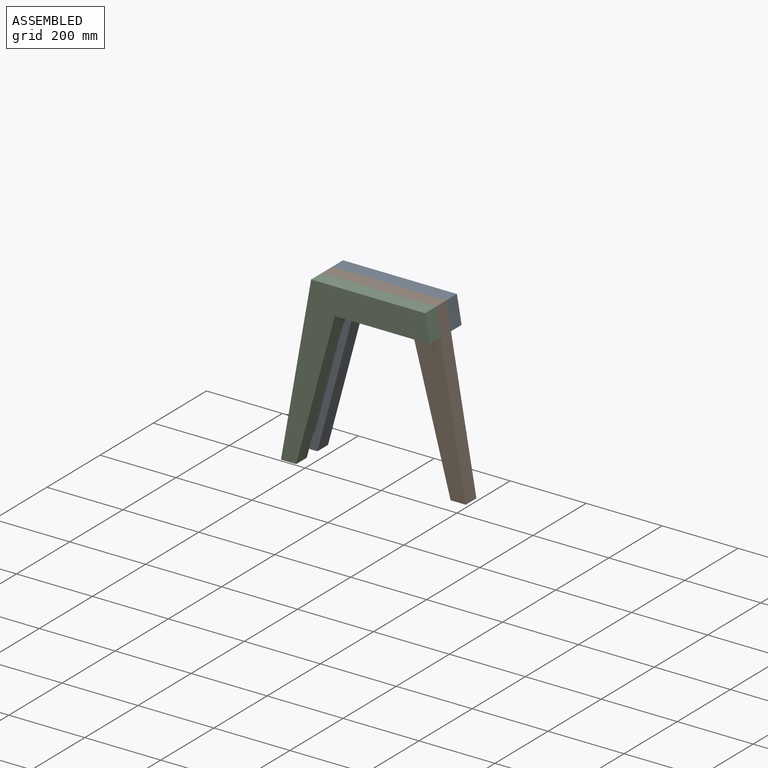
[diagram: assembled view]
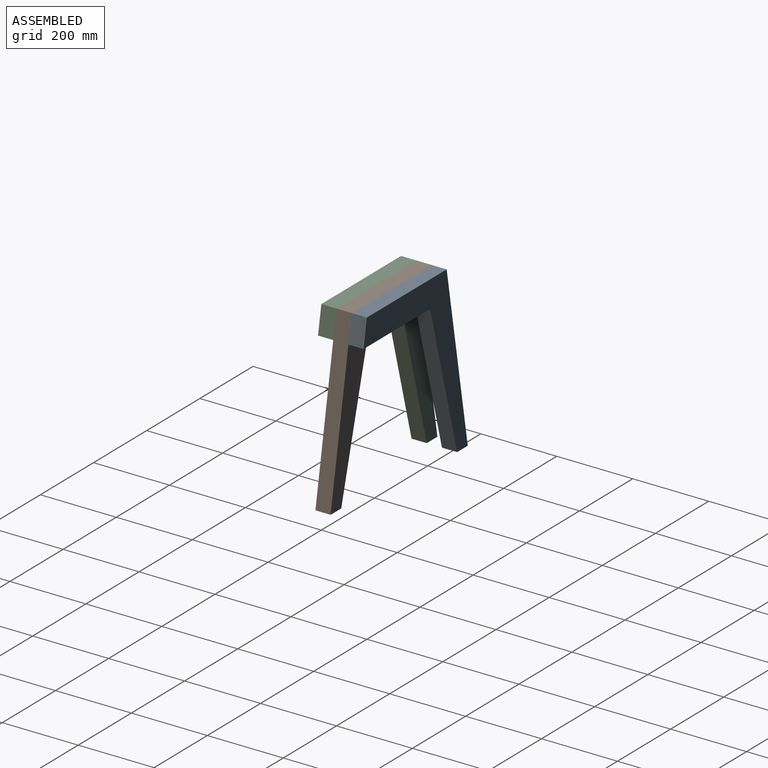
[diagram: assembled view, second angle]
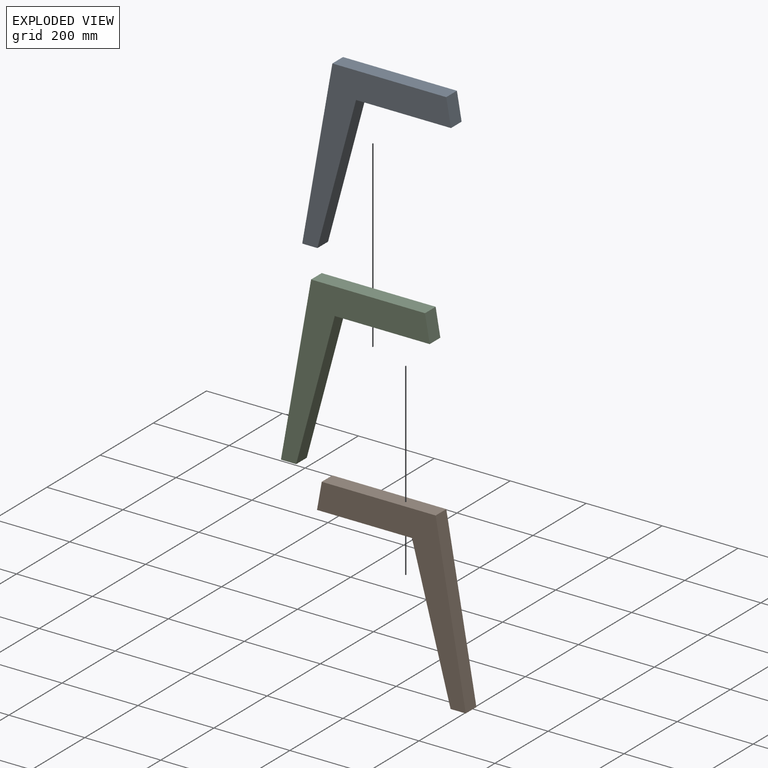
[diagram: exploded view]
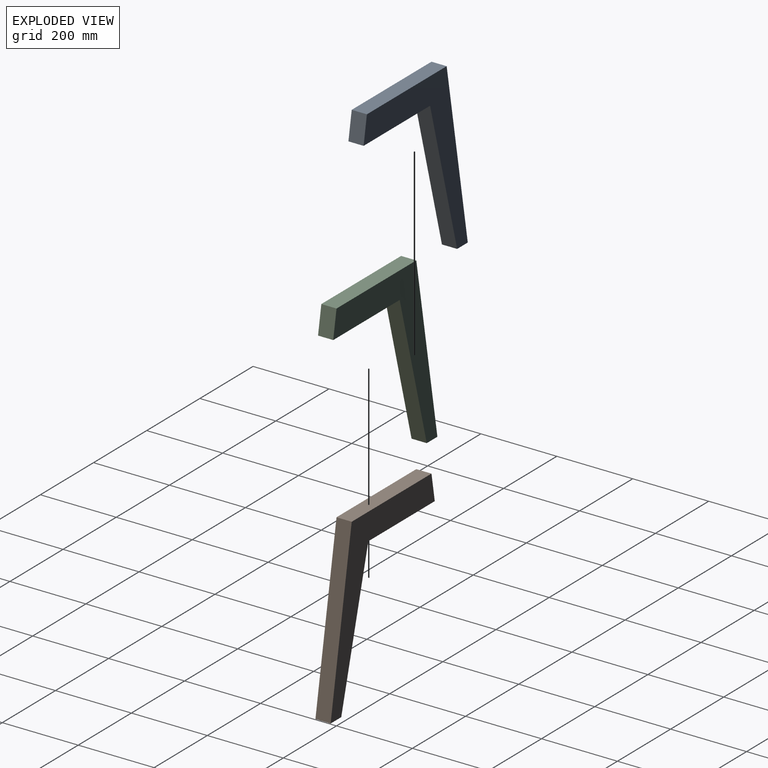
[diagram: exploded view, second angle]
ASSEMBLY  parts=3 mates=2
PART A: 8 faces, bbox 391.7x40x450 mm
  f0: plane 70.29x40mm, normal (0.98,0,0.17), area 2855.1mm2, adj f1,f5,f6,f7
  f1: plane 300x40mm, normal (0,0,1), area 12000mm2, adj f0,f2,f6,f7
  f2: plane 450x79.35mm, normal (-0.98,0,0.17), area 18277.7mm2, adj f1,f3,f6,f7
  f3: plane 40x40mm, normal (0,0,-1), area 1600mm2, adj f2,f4,f6,f7
  f4: plane 379.71x101.74mm, normal (0.97,0,-0.26), area 15724mm2, adj f3,f5,f6,f7
  f5: plane 250x40mm, normal (0,0,-1), area 10000mm2, adj f0,f4,f6,f7
  f6: plane 450x391.74mm, normal (0,-1,0), area 43752.6mm2, adj f0,f1,f2,f3,f4,f5
  f7: plane 450x391.74mm, normal (0,1,0), area 43752.6mm2, adj f0,f1,f2,f3,f4,f5
PART B: same geometry as A
PART C: same geometry as A
PLACE A t=(-14.62,235.07,25.89)mm
PLACE B rot(axis=(0,0,1),180deg) t=(-14.62,155.07,25.89)mm
PLACE C t=(-14.62,155.07,25.89)mm
MATE fastened B.f1 <-> A.f1  axis (0,0,1) through (135.38,195.07,475.89)mm
MATE fastened C.f1 <-> B.f1  axis (0,0,1) through (135.38,155.07,475.89)mm
